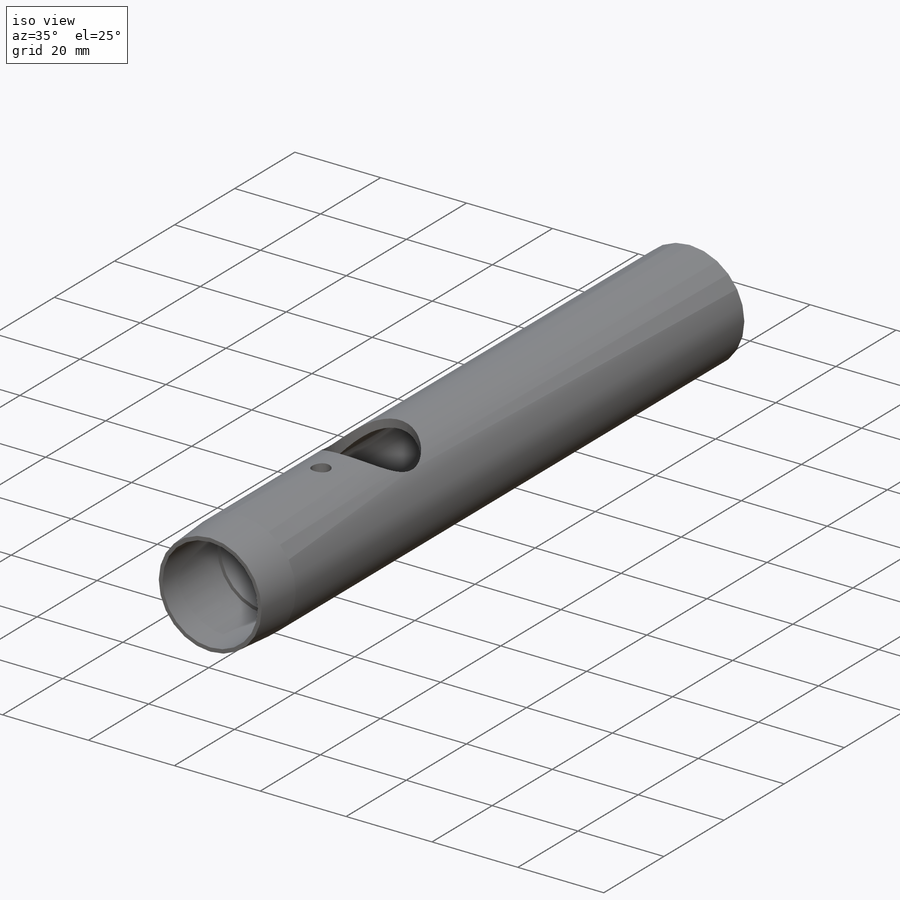
[diagram: iso view]
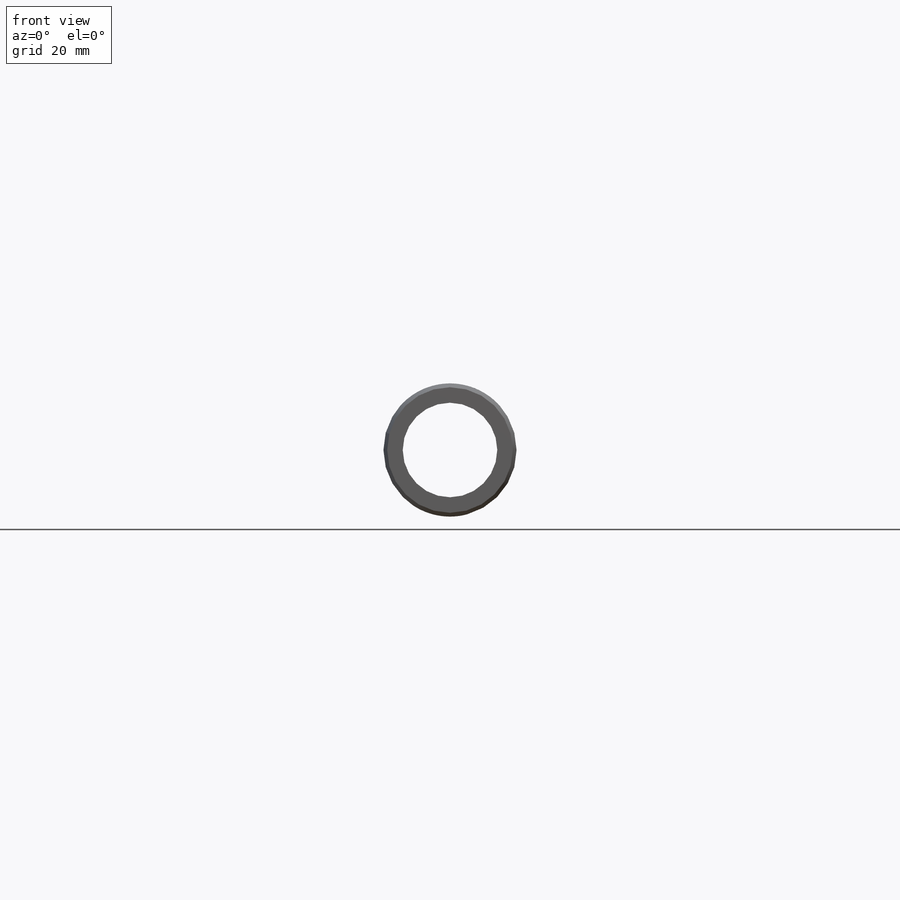
[diagram: front view]
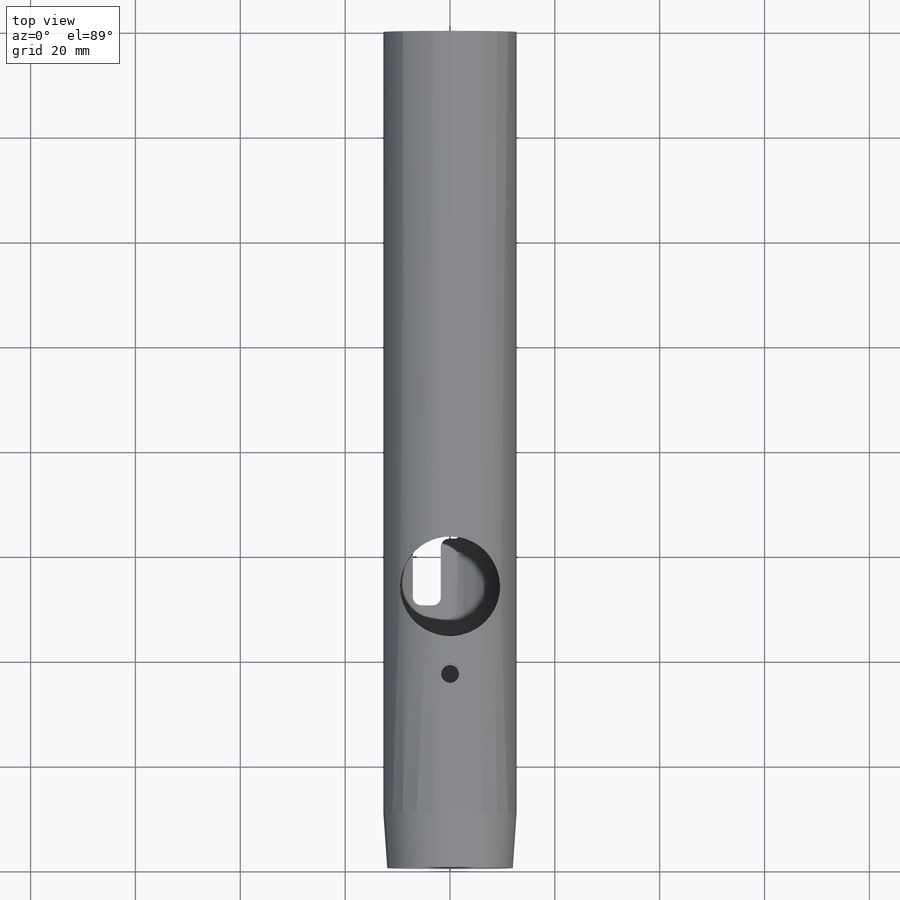
[diagram: top view]
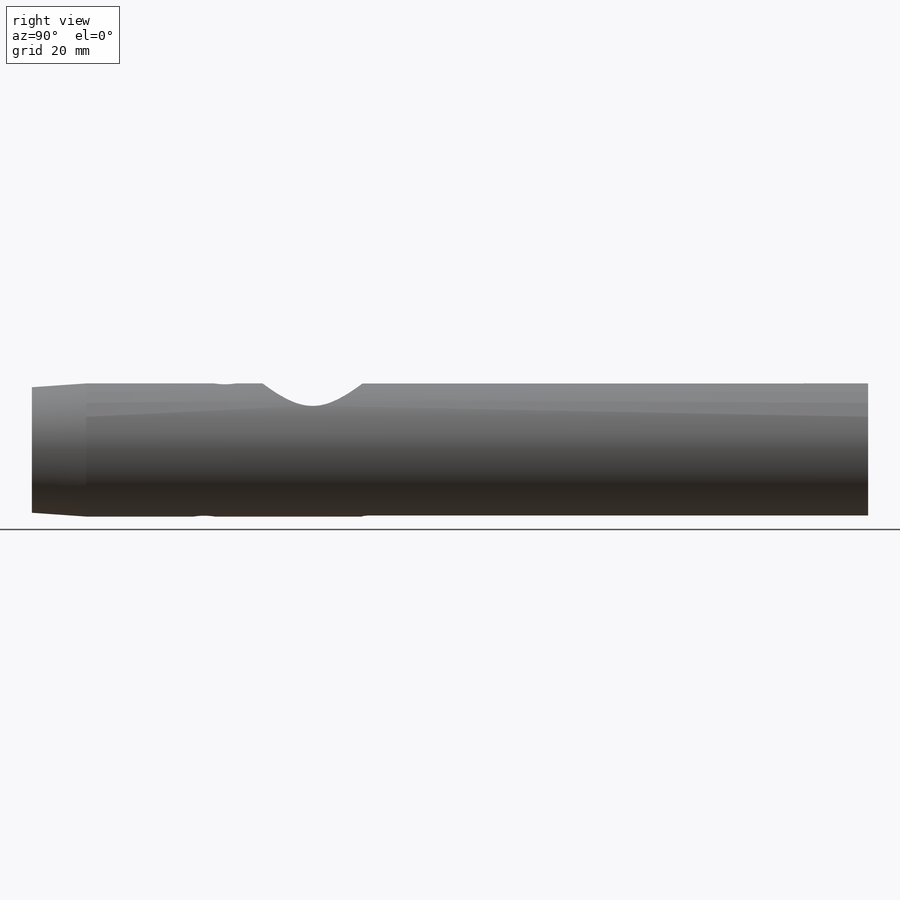
[diagram: right view]
SOLIDWORKS PART (.sldprt)
format: sldprt  version: not decoded by parser v0  size: 613,888 bytes
history: native  units: mm
features: sketch x12, cut_extrude x11, chamfer x3, plane x2, material x1, extrude x1 (+13 scaffold rows collapsed)
feature tree (43):
  scaffold x13  (default folders/planes/origin — collapsed)
  material  "6061 Alloy"
  sketch  "Sketch1"  dims[D1=~41.079259mm]
  extrude  "Extrude1"  Depth=159.512mm
  sketch  "Sketch3"  dims[D1=~2.18695mm]
  cut_extrude  "Cut-Extrude1"  Depth=114.808mm
  sketch  "Sketch4"  dims[D1=~7.337011mm]
  cut_extrude  "Cut-Extrude2"  [1 undecoded]
  chamfer  "Chamfer1"  Distance=1.778mm Angle=45deg
  chamfer  "Chamfer2"  Distance=0.762mm
  sketch  "Sketch5"  dims[D1=~11.084862mm]
  cut_extrude  "Cut-Extrude3"  Depth=29.21mm
  sketch  "Sketch8"  dims[D1=10.922mm]
  cut_extrude  "Cut-Extrude5"  Depth=25.273mm
  sketch  "Sketch9"  dims[D1=~11.134124mm]
  cut_extrude  "Cut-Extrude6"  Depth=18.1864mm
  chamfer  "Chamfer3"  Distance=10.3632mm
  plane  "Plane1"  Offset=12.7mm
  sketch  "Sketch10"  dims[c1.D1=0.254mm c1.D2=1.5875mm c2.D1=5.334mm]
  cut_extrude  "Cut-Extrude7"  Depth=7.62mm
  sketch  "Sketch11"  dims[D1=126.619mm]
  cut_extrude  "Cut-Extrude11"  Depth=3.302mm
  sketch  "Sketch15"  dims[D1=~1.551357mm]
  cut_extrude  "Cut-Extrude12"  Depth=3.302mm
  plane  "Plane2"  Offset=12.7mm
  sketch  "Sketch16"  dims[D1=105.9688mm]
  cut_extrude  "Cut-Extrude13"  Depth=12.7mm
  sketch  "Sketch17"  dims[D1=122.682mm]
  cut_extrude  "Cut-Extrude14"  Depth=3.302mm
  sketch  "Sketch18"  dims[D1=~1.209137mm]
  cut_extrude  "Cut-Extrude15"  Depth=3.302mm
decode coverage: 26 of 27 modeling features carry decoded parameters
note: ~ marks probable driven/reference dimensions
note: 1 parameter value undecoded
note: suppression state not decoded; provenance and decode notes live in map.json
